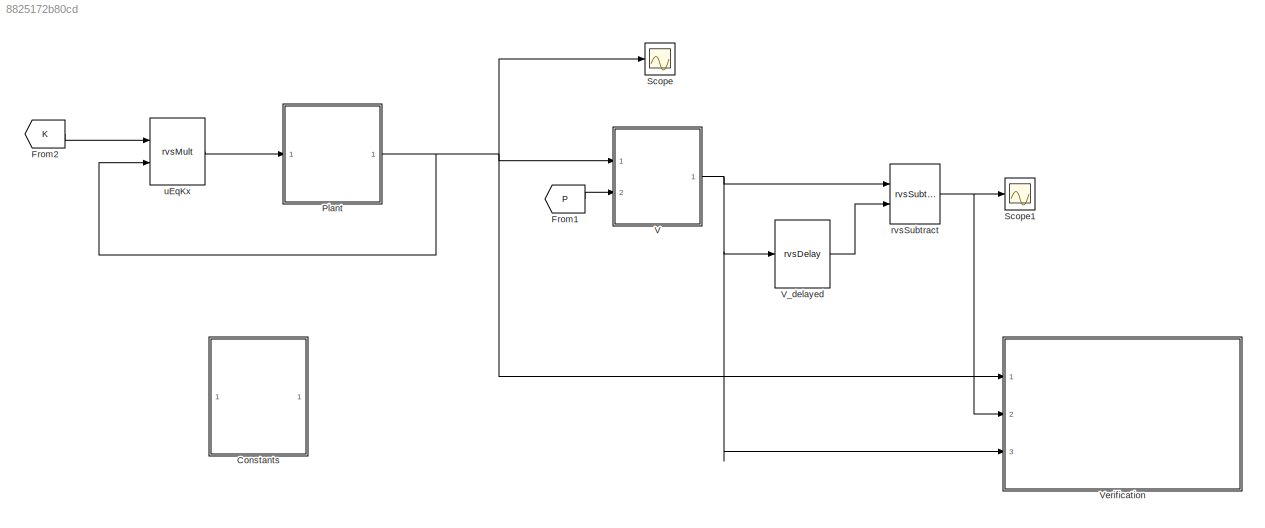
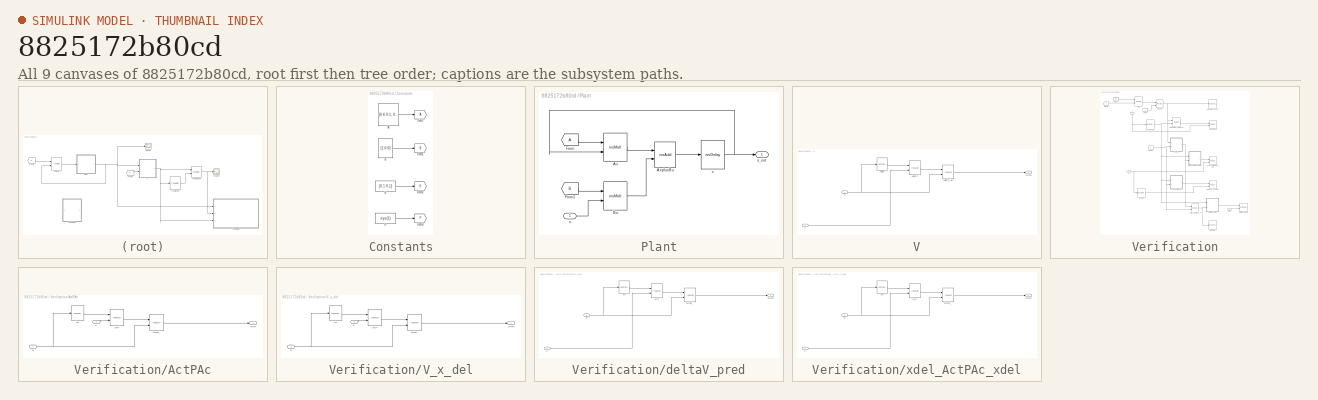
[diagram: thumbnail index - all 9 canvases of the model, root first then tree order]
MODEL slx_8825172b80cd
KIND model
CONFIG AbsTol = auto
CONFIG FixedStep = auto
CONFIG MaxStep = auto
CONFIG MinStep = auto
CONFIG RelTol = 1e-3
CONFIG SampleTimeConstraint = Unconstrained
CONFIG Solver = FixedStepDiscrete
CONFIG SolverMode = Auto
CONFIG SolverName = FixedStepDiscrete
CONFIG StartTime = 0.0
CONFIG StopTime = 10.0
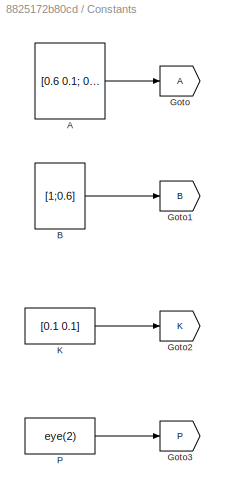
BLOCK [SubSystem] Constants
  Ports = []
  RequestExecContextInheritance = off
  Variant = off
BLOCK [Constant] Constants/A
  Value = [0.6 0.1; 0.0 0.5]
BLOCK [Constant] Constants/B
  Value = [1;0.6]
  VectorParams1D = off
BLOCK [Goto] Constants/Goto
  TagVisibility = global
BLOCK [Goto] Constants/Goto1
  GotoTag = B
  TagVisibility = global
BLOCK [Goto] Constants/Goto2
  GotoTag = K
  TagVisibility = global
BLOCK [Goto] Constants/Goto3
  GotoTag = P
  TagVisibility = global
BLOCK [Constant] Constants/K
  Value = [0.1 0.1]
  VectorParams1D = off
BLOCK [Constant] Constants/P
  Value = eye(2)
  VectorParams1D = off
BLOCK [From] From1
  GotoTag = P
  TagVisibility = global
BLOCK [From] From2
  GotoTag = K
  TagVisibility = global
BLOCK [SubSystem] Plant
  Ports = [1, 1]
  RequestExecContextInheritance = off
  Variant = off
BLOCK [Reference] Plant/Ax  REF=rvs/rvsMult  (lib defined in slx_4df59143a37a)
  Ports = [2, 1]
  SourceBlock = rvs/rvsMult
  SourceType = rvsMult
BLOCK [Reference] Plant/AxplusBu  REF=rvs/rvsAdd  (lib defined in slx_4df59143a37a)
  Ports = [2, 1]
  SourceBlock = rvs/rvsAdd
  SourceType = rvsAdd
BLOCK [Reference] Plant/Bu  REF=rvs/rvsMult  (lib defined in slx_4df59143a37a)
  Ports = [2, 1]
  SourceBlock = rvs/rvsMult
  SourceType = rvsMult
BLOCK [From] Plant/From
  TagVisibility = global
BLOCK [From] Plant/From1
  GotoTag = B
  TagVisibility = global
BLOCK [Inport] Plant/u
  IconDisplay = Port number
BLOCK [Reference] Plant/x  REF=rvs/rvsDelay  (lib defined in slx_4df59143a37a)
  Ports = [1, 1]
  SourceBlock = rvs/rvsDelay
  SourceType = rvsDelay
BLOCK [Outport] Plant/x_out
  IconDisplay = Port number
BLOCK [Scope] Scope
  Ports = [1]
  ScopeSpecificationString = Simulink.scopes.TimeScopeBlockCfg('CurrentConfiguration', extmgr.ConfigurationSet(extmgr.Configuration('Core','General UI',true),extmgr.Configuration('Core','Source UI',true),extmgr.Configuration('Sources','WiredSimulink',true),extmgr.Configuration('Visuals','Time Domain',true,'SerializedDisplays',{struct('MinYLimReal','-0.65','MaxYLimReal','0.85','YLabelReal','','MinYLimMag','0.00000','MaxYLimMag...<+1348ch>
BLOCK [Scope] Scope1
  Ports = [1]
  ScopeSpecificationString = Simulink.scopes.TimeScopeBlockCfg('CurrentConfiguration', extmgr.ConfigurationSet(extmgr.Configuration('Core','General UI',true),extmgr.Configuration('Core','Source UI',true),extmgr.Configuration('Sources','WiredSimulink',true,'DataLoggingVariableName','ScopeData1'),extmgr.Configuration('Visuals','Time Domain',true,'SerializedDisplays',{struct('MinYLimReal','-0.69016','MaxYLimReal','0.89891','YLab...<+1398ch>
BLOCK [SubSystem] V
  Ports = [2, 1]
  RequestExecContextInheritance = off
  Variant = off
BLOCK [Reference] V/ABallT  REF=rvs/rvsTranspose  (lib defined in slx_4df59143a37a)
  Ports = [1, 1]
  SourceBlock = rvs/rvsTranspose
  SourceType = rvsTranspose
BLOCK [Reference] V/ABallT_C  REF=rvs/rvsMult  (lib defined in slx_4df59143a37a)
  Ports = [2, 1]
  SourceBlock = rvs/rvsMult
  SourceType = rvsMult
BLOCK [Reference] V/ABallT_C_AB  REF=rvs/rvsMult  (lib defined in slx_4df59143a37a)
  Ports = [2, 1]
  SourceBlock = rvs/rvsMult
  SourceType = rvsMult
BLOCK [Inport] V/M
  IconDisplay = Port number
BLOCK [Outport] V/MtPM
  IconDisplay = Port number
BLOCK [Inport] V/P
  IconDisplay = Port number
  Port = 2
BLOCK [Reference] V_delayed  REF=rvs/rvsDelay  (lib defined in slx_4df59143a37a)
  Ports = [1, 1]
  SourceBlock = rvs/rvsDelay
  SourceType = rvsDelay
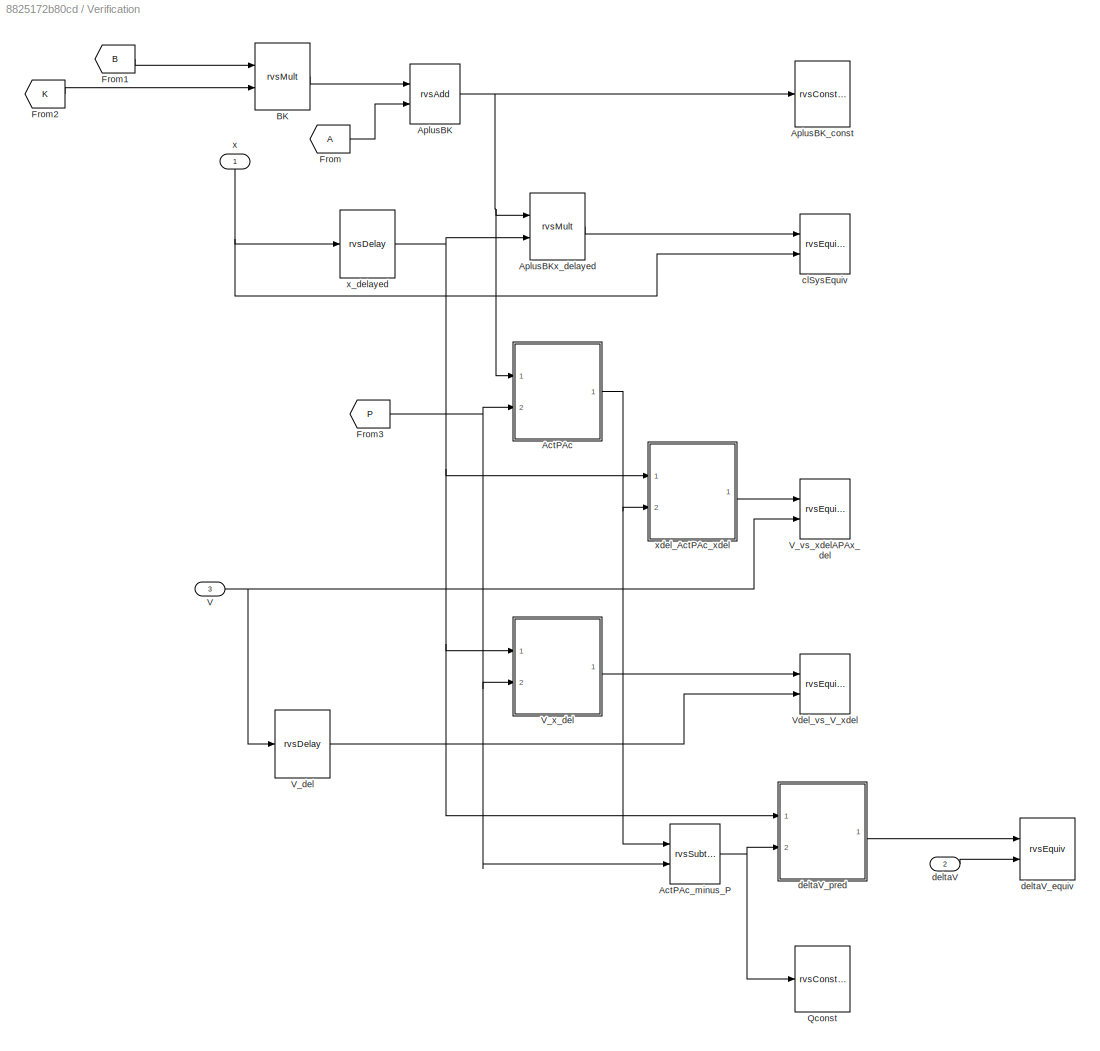
BLOCK [SubSystem] Verification
  Ports = [3]
  RequestExecContextInheritance = off
  Variant = off
BLOCK [SubSystem] Verification/ActPAc
  Ports = [2, 1]
  RequestExecContextInheritance = off
  Variant = off
BLOCK [Inport] Verification/ActPAc/M
  IconDisplay = Port number
BLOCK [Reference] Verification/ActPAc/Mt  REF=rvs/rvsTranspose  (lib defined in slx_4df59143a37a)
  Ports = [1, 1]
  SourceBlock = rvs/rvsTranspose
  SourceType = rvsTranspose
BLOCK [Reference] Verification/ActPAc/MtP  REF=rvs/rvsMult  (lib defined in slx_4df59143a37a)
  Ports = [2, 1]
  SourceBlock = rvs/rvsMult
  SourceType = rvsMult
BLOCK [Outport] Verification/ActPAc/MtPM
  IconDisplay = Port number
BLOCK [Reference] Verification/ActPAc/MtPM_  REF=rvs/rvsMult  (lib defined in slx_4df59143a37a)
  Ports = [2, 1]
  SourceBlock = rvs/rvsMult
  SourceType = rvsMult
BLOCK [Inport] Verification/ActPAc/P
  IconDisplay = Port number
  Port = 2
BLOCK [Reference] Verification/ActPAc_minus_P  REF=rvs/rvsSubtract  (lib defined in slx_4df59143a37a)
  Ports = [2, 1]
  SourceBlock = rvs/rvsSubtract
  SourceType = rvsSubtract
BLOCK [Reference] Verification/AplusBK  REF=rvs/rvsAdd  (lib defined in slx_4df59143a37a)
  Ports = [2, 1]
  SourceBlock = rvs/rvsAdd
  SourceType = rvsAdd
BLOCK [Reference] Verification/AplusBK_const  REF=rvs/rvsConstant  (lib defined in slx_4df59143a37a)
  Ports = [1]
  SourceBlock = rvs/rvsConstant
  SourceType = rvsConstant
BLOCK [Reference] Verification/AplusBKx_delayed  REF=rvs/rvsMult  (lib defined in slx_4df59143a37a)
  Ports = [2, 1]
  SourceBlock = rvs/rvsMult
  SourceType = rvsMult
BLOCK [Reference] Verification/BK  REF=rvs/rvsMult  (lib defined in slx_4df59143a37a)
  Ports = [2, 1]
  SourceBlock = rvs/rvsMult
  SourceType = rvsMult
BLOCK [From] Verification/From
  TagVisibility = global
BLOCK [From] Verification/From1
  GotoTag = B
  TagVisibility = global
BLOCK [From] Verification/From2
  GotoTag = K
  TagVisibility = global
BLOCK [From] Verification/From3
  GotoTag = P
  TagVisibility = global
BLOCK [Reference] Verification/Qconst  REF=rvs/rvsConstant  (lib defined in slx_4df59143a37a)
  Ports = [1]
  SourceBlock = rvs/rvsConstant
  SourceType = rvsConstant
BLOCK [Inport] Verification/V
  IconDisplay = Port number
  Port = 3
BLOCK [Reference] Verification/V_del  REF=rvs/rvsDelay  (lib defined in slx_4df59143a37a)
  Ports = [1, 1]
  SourceBlock = rvs/rvsDelay
  SourceType = rvsDelay
BLOCK [Reference] Verification/V_vs_xdelAPAx_del  REF=rvs/rvsEquivLemma  (lib defined in slx_4df59143a37a)
  Ports = [2]
  SourceBlock = rvs/rvsEquivLemma
  SourceType = rvsEquivLemma
BLOCK [SubSystem] Verification/V_x_del
  Ports = [2, 1]
  RequestExecContextInheritance = off
  Variant = off
BLOCK [Inport] Verification/V_x_del/M
  IconDisplay = Port number
BLOCK [Reference] Verification/V_x_del/Mt  REF=rvs/rvsTranspose  (lib defined in slx_4df59143a37a)
  Ports = [1, 1]
  SourceBlock = rvs/rvsTranspose
  SourceType = rvsTranspose
BLOCK [Reference] Verification/V_x_del/MtP  REF=rvs/rvsMult  (lib defined in slx_4df59143a37a)
  Ports = [2, 1]
  SourceBlock = rvs/rvsMult
  SourceType = rvsMult
BLOCK [Outport] Verification/V_x_del/MtPM
  IconDisplay = Port number
BLOCK [Reference] Verification/V_x_del/MtPM_  REF=rvs/rvsMult  (lib defined in slx_4df59143a37a)
  Ports = [2, 1]
  SourceBlock = rvs/rvsMult
  SourceType = rvsMult
BLOCK [Inport] Verification/V_x_del/P
  IconDisplay = Port number
  Port = 2
BLOCK [Reference] Verification/Vdel_vs_V_xdel  REF=rvs/rvsEquivLemma  (lib defined in slx_4df59143a37a)
  Ports = [2]
  SourceBlock = rvs/rvsEquivLemma
  SourceType = rvsEquivLemma
BLOCK [Reference] Verification/clSysEquiv  REF=rvs/rvsEquivLemma  (lib defined in slx_4df59143a37a)
  Ports = [2]
  SourceBlock = rvs/rvsEquivLemma
  SourceType = rvsEquivLemma
BLOCK [Inport] Verification/deltaV
  IconDisplay = Port number
  Port = 2
BLOCK [Reference] Verification/deltaV_equiv  REF=rvs/rvsEquiv  (lib defined in slx_4df59143a37a)
  Ports = [2]
  SourceBlock = rvs/rvsEquiv
  SourceType = rvsEquiv
BLOCK [SubSystem] Verification/deltaV_pred
  Ports = [2, 1]
  RequestExecContextInheritance = off
  Variant = off
BLOCK [Inport] Verification/deltaV_pred/M
  IconDisplay = Port number
BLOCK [Reference] Verification/deltaV_pred/Mt  REF=rvs/rvsTranspose  (lib defined in slx_4df59143a37a)
  Ports = [1, 1]
  SourceBlock = rvs/rvsTranspose
  SourceType = rvsTranspose
BLOCK [Reference] Verification/deltaV_pred/MtP  REF=rvs/rvsMult  (lib defined in slx_4df59143a37a)
  Ports = [2, 1]
  SourceBlock = rvs/rvsMult
  SourceType = rvsMult
BLOCK [Outport] Verification/deltaV_pred/MtPM
  IconDisplay = Port number
BLOCK [Reference] Verification/deltaV_pred/MtPM_  REF=rvs/rvsMult  (lib defined in slx_4df59143a37a)
  Ports = [2, 1]
  SourceBlock = rvs/rvsMult
  SourceType = rvsMult
BLOCK [Inport] Verification/deltaV_pred/P
  IconDisplay = Port number
  Port = 2
BLOCK [Inport] Verification/x
  IconDisplay = Port number
BLOCK [Reference] Verification/x_delayed  REF=rvs/rvsDelay  (lib defined in slx_4df59143a37a)
  Ports = [1, 1]
  SourceBlock = rvs/rvsDelay
  SourceType = rvsDelay
BLOCK [SubSystem] Verification/xdel_ActPAc_xdel
  Ports = [2, 1]
  RequestExecContextInheritance = off
  Variant = off
BLOCK [Inport] Verification/xdel_ActPAc_xdel/M
  IconDisplay = Port number
BLOCK [Reference] Verification/xdel_ActPAc_xdel/Mt  REF=rvs/rvsTranspose  (lib defined in slx_4df59143a37a)
  Ports = [1, 1]
  SourceBlock = rvs/rvsTranspose
  SourceType = rvsTranspose
BLOCK [Reference] Verification/xdel_ActPAc_xdel/MtP  REF=rvs/rvsMult  (lib defined in slx_4df59143a37a)
  Ports = [2, 1]
  SourceBlock = rvs/rvsMult
  SourceType = rvsMult
BLOCK [Outport] Verification/xdel_ActPAc_xdel/MtPM
  IconDisplay = Port number
BLOCK [Reference] Verification/xdel_ActPAc_xdel/MtPM_  REF=rvs/rvsMult  (lib defined in slx_4df59143a37a)
  Ports = [2, 1]
  SourceBlock = rvs/rvsMult
  SourceType = rvsMult
BLOCK [Inport] Verification/xdel_ActPAc_xdel/P
  IconDisplay = Port number
  Port = 2
BLOCK [Reference] rvsSubtract  REF=rvs/rvsSubtract  (lib defined in slx_4df59143a37a)
  Ports = [2, 1]
  SourceBlock = rvs/rvsSubtract
  SourceType = rvsSubtract
BLOCK [Reference] uEqKx  REF=rvs/rvsMult  (lib defined in slx_4df59143a37a)
  Ports = [2, 1]
  SourceBlock = rvs/rvsMult
  SourceType = rvsMult
LINE Constants/A:1 -> Constants/Goto:1
LINE Constants/B:1 -> Constants/Goto1:1
LINE Constants/K:1 -> Constants/Goto2:1
LINE Constants/P:1 -> Constants/Goto3:1
LINE From1:1 -> V:2
LINE From2:1 -> uEqKx:1
LINE Plant/Ax:1 -> Plant/AxplusBu:1
LINE Plant/AxplusBu:1 -> Plant/x:1
LINE Plant/Bu:1 -> Plant/AxplusBu:2
LINE Plant/From1:1 -> Plant/Bu:1
LINE Plant/From:1 -> Plant/Ax:1
LINE Plant/u:1 -> Plant/Bu:2
NET Plant/x:1 -> Plant/Ax:2, Plant/x_out:1
NET Plant:1 -> Scope:1, V:1, Verification:1, uEqKx:2
LINE V/ABallT:1 -> V/ABallT_C:1
LINE V/ABallT_C:1 -> V/ABallT_C_AB:1
LINE V/ABallT_C_AB:1 -> V/MtPM:1
NET V/M:1 -> V/ABallT:1, V/ABallT_C_AB:2
LINE V/P:1 -> V/ABallT_C:2
NET V:1 -> V_delayed:1, Verification:3, rvsSubtract:1
LINE V_delayed:1 -> rvsSubtract:2
NET Verification/ActPAc/M:1 -> Verification/ActPAc/Mt:1, Verification/ActPAc/MtPM_:2
LINE Verification/ActPAc/Mt:1 -> Verification/ActPAc/MtP:1
LINE Verification/ActPAc/MtP:1 -> Verification/ActPAc/MtPM_:1
LINE Verification/ActPAc/MtPM_:1 -> Verification/ActPAc/MtPM:1
LINE Verification/ActPAc/P:1 -> Verification/ActPAc/MtP:2
NET Verification/ActPAc:1 -> Verification/ActPAc_minus_P:1, Verification/xdel_ActPAc_xdel:2
NET Verification/ActPAc_minus_P:1 -> Verification/Qconst:1, Verification/deltaV_pred:2
NET Verification/AplusBK:1 -> Verification/ActPAc:1, Verification/AplusBK_const:1, Verification/AplusBKx_delayed:1
LINE Verification/AplusBKx_delayed:1 -> Verification/clSysEquiv:1
LINE Verification/BK:1 -> Verification/AplusBK:1
LINE Verification/From1:1 -> Verification/BK:1
LINE Verification/From2:1 -> Verification/BK:2
NET Verification/From3:1 -> Verification/ActPAc:2, Verification/ActPAc_minus_P:2, Verification/V_x_del:2
LINE Verification/From:1 -> Verification/AplusBK:2
NET Verification/V:1 -> Verification/V_del:1, Verification/V_vs_xdelAPAx_del:2
LINE Verification/V_del:1 -> Verification/Vdel_vs_V_xdel:2
NET Verification/V_x_del/M:1 -> Verification/V_x_del/Mt:1, Verification/V_x_del/MtPM_:2
LINE Verification/V_x_del/Mt:1 -> Verification/V_x_del/MtP:1
LINE Verification/V_x_del/MtP:1 -> Verification/V_x_del/MtPM_:1
LINE Verification/V_x_del/MtPM_:1 -> Verification/V_x_del/MtPM:1
LINE Verification/V_x_del/P:1 -> Verification/V_x_del/MtP:2
LINE Verification/V_x_del:1 -> Verification/Vdel_vs_V_xdel:1
LINE Verification/deltaV:1 -> Verification/deltaV_equiv:2
NET Verification/deltaV_pred/M:1 -> Verification/deltaV_pred/Mt:1, Verification/deltaV_pred/MtPM_:2
LINE Verification/deltaV_pred/Mt:1 -> Verification/deltaV_pred/MtP:1
LINE Verification/deltaV_pred/MtP:1 -> Verification/deltaV_pred/MtPM_:1
LINE Verification/deltaV_pred/MtPM_:1 -> Verification/deltaV_pred/MtPM:1
LINE Verification/deltaV_pred/P:1 -> Verification/deltaV_pred/MtP:2
LINE Verification/deltaV_pred:1 -> Verification/deltaV_equiv:1
NET Verification/x:1 -> Verification/clSysEquiv:2, Verification/x_delayed:1
NET Verification/x_delayed:1 -> Verification/AplusBKx_delayed:2, Verification/V_x_del:1, Verification/deltaV_pred:1, Verification/xdel_ActPAc_xdel:1
NET Verification/xdel_ActPAc_xdel/M:1 -> Verification/xdel_ActPAc_xdel/Mt:1, Verification/xdel_ActPAc_xdel/MtPM_:2
LINE Verification/xdel_ActPAc_xdel/Mt:1 -> Verification/xdel_ActPAc_xdel/MtP:1
LINE Verification/xdel_ActPAc_xdel/MtP:1 -> Verification/xdel_ActPAc_xdel/MtPM_:1
LINE Verification/xdel_ActPAc_xdel/MtPM_:1 -> Verification/xdel_ActPAc_xdel/MtPM:1
LINE Verification/xdel_ActPAc_xdel/P:1 -> Verification/xdel_ActPAc_xdel/MtP:2
LINE Verification/xdel_ActPAc_xdel:1 -> Verification/V_vs_xdelAPAx_del:1
NET rvsSubtract:1 -> Scope1:1, Verification:2
LINE uEqKx:1 -> Plant:1
note: NET lines group one-source signal fan-out (src -> all destinations, sorted); 1:1 wires keep LINE
